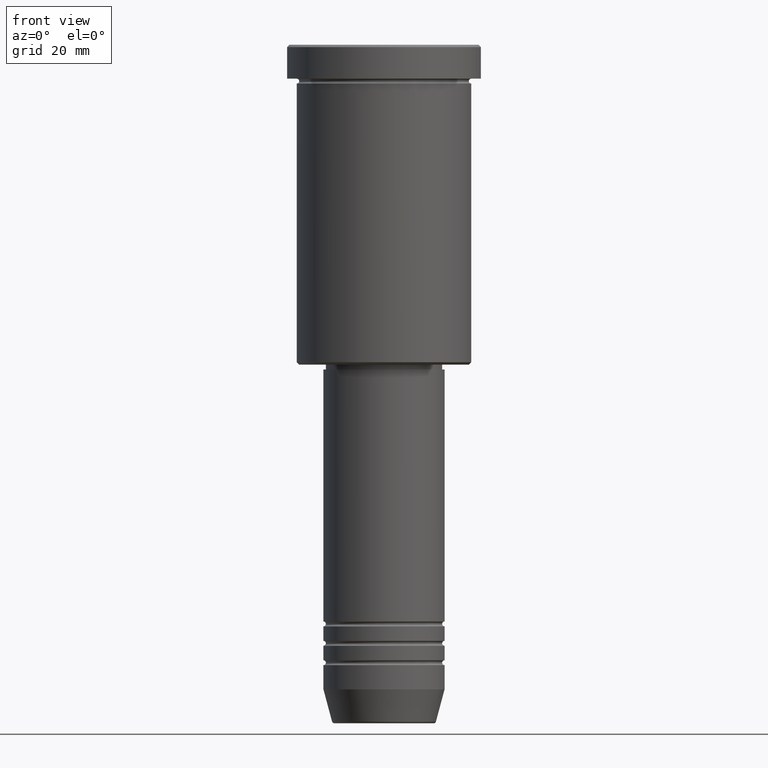
[diagram: clean part render]
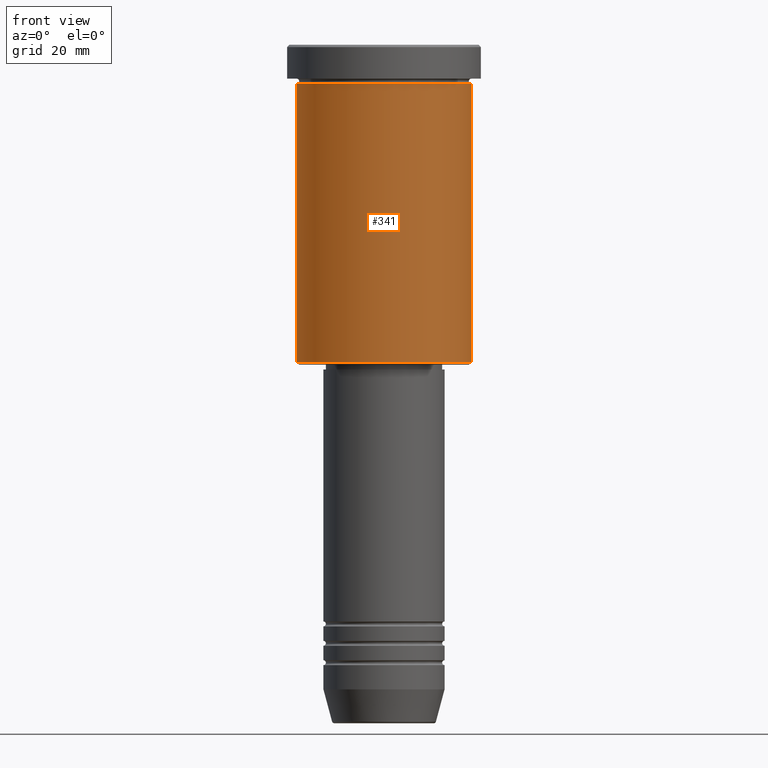
[diagram: same view with one face highlighted and labeled with its STEP entity id]
A machine part, front view. The second image highlights one B-rep face of the part: STEP entity #341.
In plain terms, the highlighted cylindrical surface (partial cylindrical patch) has radius 18 mm, axis along (-0, -0, 1).
Its self-contained STEP definition (entity closure, byte-faithful):
#98 = CARTESIAN_POINT ( 'NONE',  ( 0.000000000000000000, 0.000000000000000000, -7.999999999999996447 ) ) ;
#113 = CARTESIAN_POINT ( 'NONE',  ( -18.00000000000000000, 2.204364238465235428E-15, -65.50000000000000000 ) ) ;
#145 = DIRECTION ( 'NONE',  ( -0.000000000000000000, -0.000000000000000000, 1.000000000000000000 ) ) ;
#151 = EDGE_CURVE ( 'NONE', #984, #419, #338, .T. ) ;
#157 = DIRECTION ( 'NONE',  ( -0.000000000000000000, -0.000000000000000000, 1.000000000000000000 ) ) ;
#189 = VERTEX_POINT ( 'NONE', #624 ) ;
#232 = FACE_OUTER_BOUND ( 'NONE', #686, .T. ) ;
#243 = VECTOR ( 'NONE', #157, 1000.000000000000000 ) ;
#277 = AXIS2_PLACEMENT_3D ( 'NONE', #98, #467, #386 ) ;
#304 = CARTESIAN_POINT ( 'NONE',  ( 18.00000000000000000, 0.000000000000000000, -7.999999999999996447 ) ) ;
#338 = CIRCLE ( 'NONE', #277, 18.00000000000000000 ) ;
#341 = ADVANCED_FACE ( 'NONE', ( #232 ), #593, .T. ) ;
#364 = LINE ( 'NONE', #909, #925 ) ;
#386 = DIRECTION ( 'NONE',  ( 1.000000000000000000, 0.000000000000000000, 0.000000000000000000 ) ) ;
#411 = AXIS2_PLACEMENT_3D ( 'NONE', #800, #145, #790 ) ;
#419 = VERTEX_POINT ( 'NONE', #304 ) ;
#467 = DIRECTION ( 'NONE',  ( -0.000000000000000000, -0.000000000000000000, 1.000000000000000000 ) ) ;
#496 = CARTESIAN_POINT ( 'NONE',  ( -18.00000000000000000, 2.204364238465235428E-15, -7.999999999999996447 ) ) ;
#524 = CIRCLE ( 'NONE', #980, 18.00000000000000000 ) ;
#533 = CARTESIAN_POINT ( 'NONE',  ( -18.00000000000000000, 2.204364238465235428E-15, 0.000000000000000000 ) ) ;
#593 = CYLINDRICAL_SURFACE ( 'NONE', #411, 18.00000000000000000 ) ;
#624 = CARTESIAN_POINT ( 'NONE',  ( 18.00000000000000000, 0.000000000000000000, -65.50000000000000000 ) ) ;
#686 = EDGE_LOOP ( 'NONE', ( #835, #699, #759, #968 ) ) ;
#699 = ORIENTED_EDGE ( 'NONE', *, *, #1006, .T. ) ;
#741 = EDGE_CURVE ( 'NONE', #998, #984, #878, .T. ) ;
#752 = DIRECTION ( 'NONE',  ( -0.000000000000000000, -0.000000000000000000, 1.000000000000000000 ) ) ;
#759 = ORIENTED_EDGE ( 'NONE', *, *, #863, .T. ) ;
#790 = DIRECTION ( 'NONE',  ( 1.000000000000000000, 0.000000000000000000, 0.000000000000000000 ) ) ;
#800 = CARTESIAN_POINT ( 'NONE',  ( 0.000000000000000000, 0.000000000000000000, 0.000000000000000000 ) ) ;
#835 = ORIENTED_EDGE ( 'NONE', *, *, #741, .F. ) ;
#840 = CARTESIAN_POINT ( 'NONE',  ( 0.000000000000000000, 0.000000000000000000, -65.50000000000000000 ) ) ;
#863 = EDGE_CURVE ( 'NONE', #189, #419, #364, .T. ) ;
#878 = LINE ( 'NONE', #533, #243 ) ;
#895 = DIRECTION ( 'NONE',  ( -0.000000000000000000, -0.000000000000000000, 1.000000000000000000 ) ) ;
#909 = CARTESIAN_POINT ( 'NONE',  ( 18.00000000000000000, 0.000000000000000000, 0.000000000000000000 ) ) ;
#925 = VECTOR ( 'NONE', #895, 1000.000000000000000 ) ;
#968 = ORIENTED_EDGE ( 'NONE', *, *, #151, .F. ) ;
#980 = AXIS2_PLACEMENT_3D ( 'NONE', #840, #752, #1113 ) ;
#984 = VERTEX_POINT ( 'NONE', #496 ) ;
#998 = VERTEX_POINT ( 'NONE', #113 ) ;
#1006 = EDGE_CURVE ( 'NONE', #998, #189, #524, .T. ) ;
#1113 = DIRECTION ( 'NONE',  ( -1.000000000000000000, 0.000000000000000000, 0.000000000000000000 ) ) ;